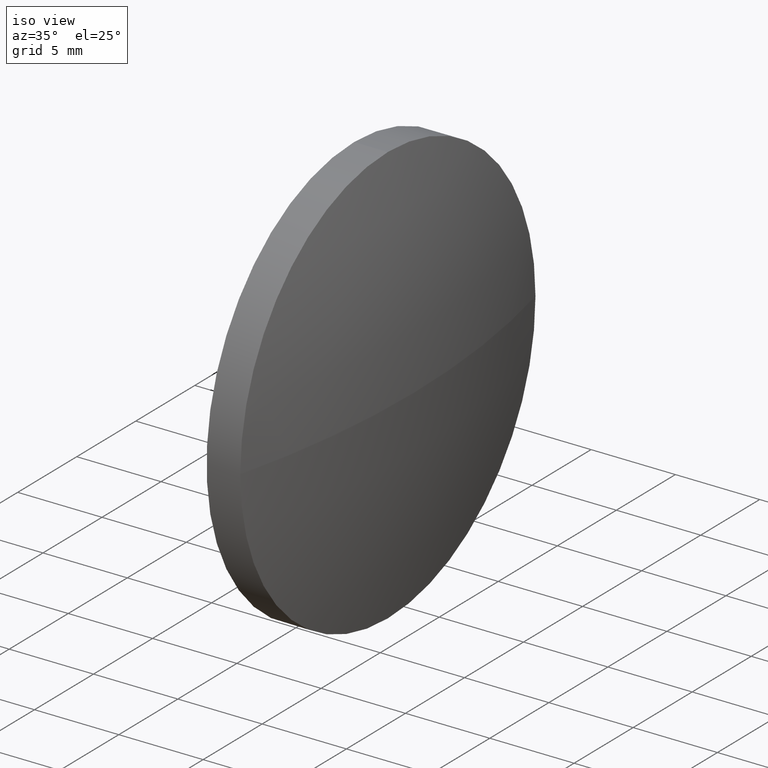
[diagram: clean part render]
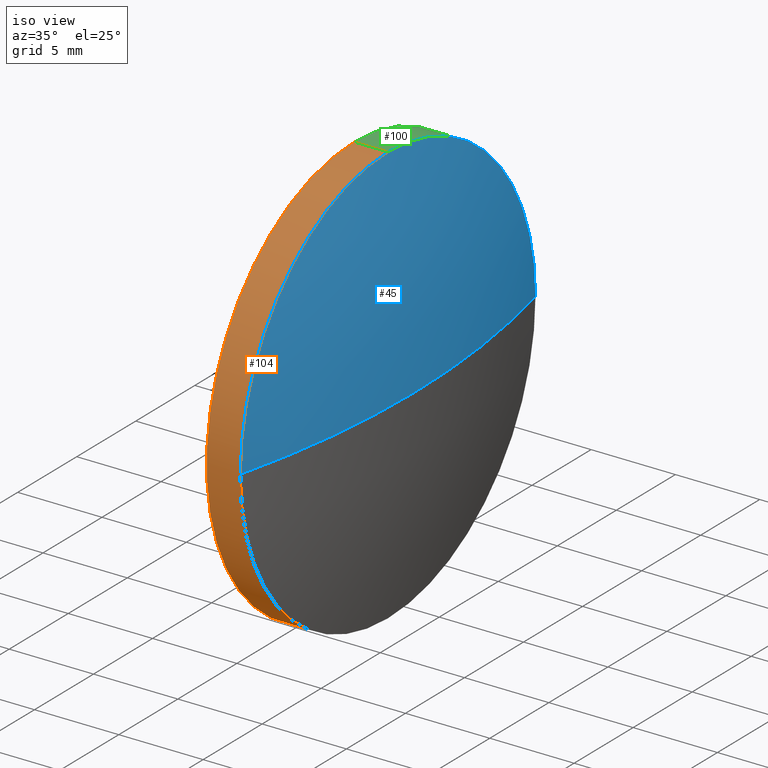
[diagram: same view with three faces highlighted in distinct colors, each labeled with its STEP entity id]
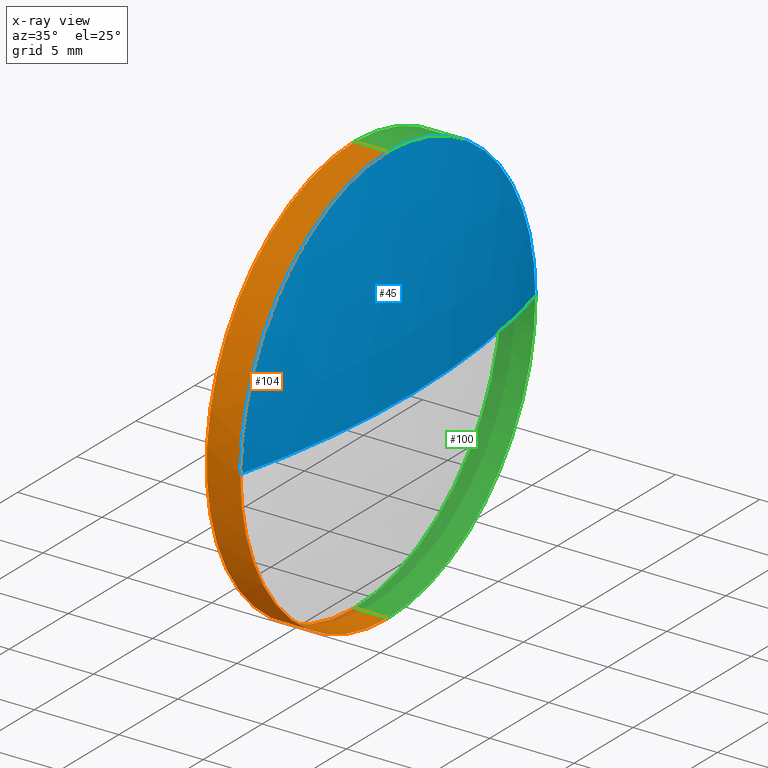
[diagram: x-ray of the same camera — body ghosted, the three highlighted faces saturated]
A machine part, iso view with three faces highlighted in distinct colors.
The next image is the same camera in x-ray (body ghosted, the three faces saturated) — at least one of them is partly hidden behind the body in this view.
Their STEP definitions:

[orange] entity #104 — the highlighted cylindrical surface (partial cylindrical patch) has radius 12.5 mm, axis along (-1, -0, -0).
#5 = VERTEX_POINT ( 'NONE', #183 ) ;
#6 = VECTOR ( 'NONE', #181, 1000.000000000000000 ) ;
#11 = CARTESIAN_POINT ( 'NONE',  ( 56.69840306798278100, 32.51047268998112800, -12.50000000000000400 ) ) ;
#21 = EDGE_LOOP ( 'NONE', ( #177, #22, #27, #57, #142 ) ) ;
#22 = ORIENTED_EDGE ( 'NONE', *, *, #59, .T. ) ;
#24 = EDGE_CURVE ( 'NONE', #37, #180, #117, .T. ) ;
#27 = ORIENTED_EDGE ( 'NONE', *, *, #145, .T. ) ;
#30 = CARTESIAN_POINT ( 'NONE',  ( 56.69840306798278100, 32.51047268998112800, 12.50000000000000400 ) ) ;
#31 = DIRECTION ( 'NONE',  ( 0.0000000000000000000, 0.0000000000000000000, 1.000000000000000000 ) ) ;
#37 = VERTEX_POINT ( 'NONE', #11 ) ;
#38 = CARTESIAN_POINT ( 'NONE',  ( 56.69840306798278100, 32.51047268998112800, 0.0000000000000000000 ) ) ;
#47 = FACE_OUTER_BOUND ( 'NONE', #21, .T. ) ;
#56 = DIRECTION ( 'NONE',  ( -1.000000000000000000, -0.0000000000000000000, -0.0000000000000000000 ) ) ;
#57 = ORIENTED_EDGE ( 'NONE', *, *, #122, .T. ) ;
#59 = EDGE_CURVE ( 'NONE', #5, #61, #108, .T. ) ;
#61 = VERTEX_POINT ( 'NONE', #127 ) ;
#66 = DIRECTION ( 'NONE',  ( 0.0000000000000000000, 0.0000000000000000000, 1.000000000000000000 ) ) ;
#68 = CIRCLE ( 'NONE', #103, 12.50000000000000400 ) ;
#69 = CARTESIAN_POINT ( 'NONE',  ( 58.69840306798278100, 32.51047268998112800, 12.50000000000000400 ) ) ;
#73 = DIRECTION ( 'NONE',  ( -1.000000000000000000, -0.0000000000000000000, -0.0000000000000000000 ) ) ;
#77 = CARTESIAN_POINT ( 'NONE',  ( 54.33278716522182300, 32.51047268998112800, -12.50000000000000400 ) ) ;
#86 = DIRECTION ( 'NONE',  ( 0.0000000000000000000, 0.0000000000000000000, 1.000000000000000000 ) ) ;
#88 = EDGE_CURVE ( 'NONE', #5, #37, #161, .T. ) ;
#90 = AXIS2_PLACEMENT_3D ( 'NONE', #173, #97, #31 ) ;
#92 = CARTESIAN_POINT ( 'NONE',  ( 58.69840306798278100, 32.51047268998112800, 0.0000000000000000000 ) ) ;
#93 = DIRECTION ( 'NONE',  ( -1.000000000000000000, -0.0000000000000000000, -0.0000000000000000000 ) ) ;
#95 = CARTESIAN_POINT ( 'NONE',  ( 54.33278716522182300, 32.51047268998112800, 12.50000000000000400 ) ) ;
#97 = DIRECTION ( 'NONE',  ( -1.000000000000000000, -0.0000000000000000000, -0.0000000000000000000 ) ) ;
#103 = AXIS2_PLACEMENT_3D ( 'NONE', #185, #56, #86 ) ;
#104 = ADVANCED_FACE ( 'NONE', ( #47 ), #141, .T. ) ;
#108 = CIRCLE ( 'NONE', #138, 12.50000000000000400 ) ;
#111 = DIRECTION ( 'NONE',  ( 0.0000000000000000000, 0.0000000000000000000, 1.000000000000000000 ) ) ;
#112 = VECTOR ( 'NONE', #73, 1000.000000000000000 ) ;
#117 = CIRCLE ( 'NONE', #172, 12.50000000000000400 ) ;
#120 = LINE ( 'NONE', #95, #112 ) ;
#122 = EDGE_CURVE ( 'NONE', #162, #180, #120, .T. ) ;
#127 = CARTESIAN_POINT ( 'NONE',  ( 58.69840306798278100, 20.01047268998112800, -1.530808498934191100E-015 ) ) ;
#138 = AXIS2_PLACEMENT_3D ( 'NONE', #92, #93, #111 ) ;
#141 = CYLINDRICAL_SURFACE ( 'NONE', #90, 12.50000000000000400 ) ;
#142 = ORIENTED_EDGE ( 'NONE', *, *, #24, .F. ) ;
#145 = EDGE_CURVE ( 'NONE', #61, #162, #68, .T. ) ;
#161 = LINE ( 'NONE', #77, #6 ) ;
#162 = VERTEX_POINT ( 'NONE', #69 ) ;
#172 = AXIS2_PLACEMENT_3D ( 'NONE', #38, #179, #66 ) ;
#173 = CARTESIAN_POINT ( 'NONE',  ( 54.33278716522182300, 32.51047268998112800, 0.0000000000000000000 ) ) ;
#177 = ORIENTED_EDGE ( 'NONE', *, *, #88, .F. ) ;
#179 = DIRECTION ( 'NONE',  ( -1.000000000000000000, -0.0000000000000000000, -0.0000000000000000000 ) ) ;
#180 = VERTEX_POINT ( 'NONE', #30 ) ;
#181 = DIRECTION ( 'NONE',  ( -1.000000000000000000, -0.0000000000000000000, -0.0000000000000000000 ) ) ;
#183 = CARTESIAN_POINT ( 'NONE',  ( 58.69840306798278100, 32.51047268998112800, -12.50000000000000400 ) ) ;
#185 = CARTESIAN_POINT ( 'NONE',  ( 58.69840306798278100, 32.51047268998112800, 0.0000000000000000000 ) ) ;

[blue] entity #45 — the highlighted spherical surface has radius 51.5005 mm.
#10 = DIRECTION ( 'NONE',  ( -0.0000000000000000000, 0.0000000000000000000, -1.000000000000000000 ) ) ;
#17 = CARTESIAN_POINT ( 'NONE',  ( 58.69840306798278100, 45.01047268998112100, 0.0000000000000000000 ) ) ;
#25 = DIRECTION ( 'NONE',  ( 0.0000000000000000000, 0.0000000000000000000, 1.000000000000000000 ) ) ;
#26 = DIRECTION ( 'NONE',  ( 0.0000000000000000000, 1.224646799147353200E-016, -1.000000000000000000 ) ) ;
#44 = EDGE_CURVE ( 'NONE', #162, #184, #60, .T. ) ;
#45 = ADVANCED_FACE ( 'NONE', ( #106 ), #139, .T. ) ;
#56 = DIRECTION ( 'NONE',  ( -1.000000000000000000, -0.0000000000000000000, -0.0000000000000000000 ) ) ;
#58 = EDGE_CURVE ( 'NONE', #131, #184, #64, .T. ) ;
#60 = CIRCLE ( 'NONE', #109, 12.50000000000000400 ) ;
#61 = VERTEX_POINT ( 'NONE', #127 ) ;
#63 = DIRECTION ( 'NONE',  ( 1.000000000000000000, 0.0000000000000000000, 0.0000000000000000000 ) ) ;
#64 = CIRCLE ( 'NONE', #132, 51.50051948051952900 ) ;
#65 = CARTESIAN_POINT ( 'NONE',  ( 58.69840306798278100, 32.51047268998112800, 0.0000000000000000000 ) ) ;
#67 = CARTESIAN_POINT ( 'NONE',  ( 8.737883587463251400, 32.51047268998112800, 0.0000000000000000000 ) ) ;
#68 = CIRCLE ( 'NONE', #103, 12.50000000000000400 ) ;
#69 = CARTESIAN_POINT ( 'NONE',  ( 58.69840306798278100, 32.51047268998112800, 12.50000000000000400 ) ) ;
#76 = EDGE_CURVE ( 'NONE', #131, #61, #148, .T. ) ;
#78 = DIRECTION ( 'NONE',  ( -1.000000000000000000, -0.0000000000000000000, -0.0000000000000000000 ) ) ;
#79 = CARTESIAN_POINT ( 'NONE',  ( 8.737883587463251400, 32.51047268998112800, 0.0000000000000000000 ) ) ;
#86 = DIRECTION ( 'NONE',  ( 0.0000000000000000000, 0.0000000000000000000, 1.000000000000000000 ) ) ;
#102 = ORIENTED_EDGE ( 'NONE', *, *, #76, .F. ) ;
#103 = AXIS2_PLACEMENT_3D ( 'NONE', #185, #56, #86 ) ;
#106 = FACE_OUTER_BOUND ( 'NONE', #126, .T. ) ;
#109 = AXIS2_PLACEMENT_3D ( 'NONE', #65, #78, #25 ) ;
#119 = AXIS2_PLACEMENT_3D ( 'NONE', #79, #10, #137 ) ;
#125 = DIRECTION ( 'NONE',  ( 0.0000000000000000000, 1.000000000000000000, 1.224646799147353500E-016 ) ) ;
#126 = EDGE_LOOP ( 'NONE', ( #102, #164, #168, #133 ) ) ;
#127 = CARTESIAN_POINT ( 'NONE',  ( 58.69840306798278100, 20.01047268998112800, -1.530808498934191100E-015 ) ) ;
#130 = CARTESIAN_POINT ( 'NONE',  ( 60.23840306798278000, 32.51047268998112800, 0.0000000000000000000 ) ) ;
#131 = VERTEX_POINT ( 'NONE', #130 ) ;
#132 = AXIS2_PLACEMENT_3D ( 'NONE', #167, #136, #63 ) ;
#133 = ORIENTED_EDGE ( 'NONE', *, *, #145, .F. ) ;
#136 = DIRECTION ( 'NONE',  ( -0.0000000000000000000, 0.0000000000000000000, 1.000000000000000000 ) ) ;
#137 = DIRECTION ( 'NONE',  ( 0.0000000000000000000, 1.000000000000000000, 0.0000000000000000000 ) ) ;
#139 = SPHERICAL_SURFACE ( 'NONE', #119, 51.50051948051952900 ) ;
#145 = EDGE_CURVE ( 'NONE', #61, #162, #68, .T. ) ;
#148 = CIRCLE ( 'NONE', #166, 51.50051948051952200 ) ;
#162 = VERTEX_POINT ( 'NONE', #69 ) ;
#164 = ORIENTED_EDGE ( 'NONE', *, *, #58, .T. ) ;
#166 = AXIS2_PLACEMENT_3D ( 'NONE', #67, #26, #125 ) ;
#167 = CARTESIAN_POINT ( 'NONE',  ( 8.737883587463251400, 32.51047268998112800, 0.0000000000000000000 ) ) ;
#168 = ORIENTED_EDGE ( 'NONE', *, *, #44, .F. ) ;
#184 = VERTEX_POINT ( 'NONE', #17 ) ;
#185 = CARTESIAN_POINT ( 'NONE',  ( 58.69840306798278100, 32.51047268998112800, 0.0000000000000000000 ) ) ;

[green] entity #100 — the highlighted cylindrical surface (partial cylindrical patch) has radius 12.5 mm, axis along (-1, -0, -0).
#4 = CIRCLE ( 'NONE', #157, 12.50000000000000400 ) ;
#5 = VERTEX_POINT ( 'NONE', #183 ) ;
#6 = VECTOR ( 'NONE', #181, 1000.000000000000000 ) ;
#7 = FACE_OUTER_BOUND ( 'NONE', #34, .T. ) ;
#11 = CARTESIAN_POINT ( 'NONE',  ( 56.69840306798278100, 32.51047268998112800, -12.50000000000000400 ) ) ;
#15 = DIRECTION ( 'NONE',  ( -1.000000000000000000, -0.0000000000000000000, -0.0000000000000000000 ) ) ;
#17 = CARTESIAN_POINT ( 'NONE',  ( 58.69840306798278100, 45.01047268998112100, 0.0000000000000000000 ) ) ;
#23 = ORIENTED_EDGE ( 'NONE', *, *, #44, .T. ) ;
#25 = DIRECTION ( 'NONE',  ( 0.0000000000000000000, 0.0000000000000000000, 1.000000000000000000 ) ) ;
#28 = CARTESIAN_POINT ( 'NONE',  ( 58.69840306798278100, 32.51047268998112800, 0.0000000000000000000 ) ) ;
#30 = CARTESIAN_POINT ( 'NONE',  ( 56.69840306798278100, 32.51047268998112800, 12.50000000000000400 ) ) ;
#34 = EDGE_LOOP ( 'NONE', ( #113, #135, #87, #48, #23 ) ) ;
#35 = EDGE_CURVE ( 'NONE', #184, #5, #158, .T. ) ;
#37 = VERTEX_POINT ( 'NONE', #11 ) ;
#41 = DIRECTION ( 'NONE',  ( -1.000000000000000000, -0.0000000000000000000, -0.0000000000000000000 ) ) ;
#44 = EDGE_CURVE ( 'NONE', #162, #184, #60, .T. ) ;
#48 = ORIENTED_EDGE ( 'NONE', *, *, #122, .F. ) ;
#52 = CARTESIAN_POINT ( 'NONE',  ( 56.69840306798278100, 32.51047268998112800, 0.0000000000000000000 ) ) ;
#60 = CIRCLE ( 'NONE', #109, 12.50000000000000400 ) ;
#65 = CARTESIAN_POINT ( 'NONE',  ( 58.69840306798278100, 32.51047268998112800, 0.0000000000000000000 ) ) ;
#69 = CARTESIAN_POINT ( 'NONE',  ( 58.69840306798278100, 32.51047268998112800, 12.50000000000000400 ) ) ;
#72 = EDGE_CURVE ( 'NONE', #180, #37, #4, .T. ) ;
#73 = DIRECTION ( 'NONE',  ( -1.000000000000000000, -0.0000000000000000000, -0.0000000000000000000 ) ) ;
#75 = CYLINDRICAL_SURFACE ( 'NONE', #83, 12.50000000000000400 ) ;
#77 = CARTESIAN_POINT ( 'NONE',  ( 54.33278716522182300, 32.51047268998112800, -12.50000000000000400 ) ) ;
#78 = DIRECTION ( 'NONE',  ( -1.000000000000000000, -0.0000000000000000000, -0.0000000000000000000 ) ) ;
#83 = AXIS2_PLACEMENT_3D ( 'NONE', #140, #41, #169 ) ;
#87 = ORIENTED_EDGE ( 'NONE', *, *, #72, .F. ) ;
#88 = EDGE_CURVE ( 'NONE', #5, #37, #161, .T. ) ;
#94 = DIRECTION ( 'NONE',  ( -1.000000000000000000, -0.0000000000000000000, -0.0000000000000000000 ) ) ;
#95 = CARTESIAN_POINT ( 'NONE',  ( 54.33278716522182300, 32.51047268998112800, 12.50000000000000400 ) ) ;
#100 = ADVANCED_FACE ( 'NONE', ( #7 ), #75, .T. ) ;
#109 = AXIS2_PLACEMENT_3D ( 'NONE', #65, #78, #25 ) ;
#110 = DIRECTION ( 'NONE',  ( 0.0000000000000000000, 0.0000000000000000000, 1.000000000000000000 ) ) ;
#112 = VECTOR ( 'NONE', #73, 1000.000000000000000 ) ;
#113 = ORIENTED_EDGE ( 'NONE', *, *, #35, .T. ) ;
#120 = LINE ( 'NONE', #95, #112 ) ;
#122 = EDGE_CURVE ( 'NONE', #162, #180, #120, .T. ) ;
#135 = ORIENTED_EDGE ( 'NONE', *, *, #88, .T. ) ;
#140 = CARTESIAN_POINT ( 'NONE',  ( 54.33278716522182300, 32.51047268998112800, 0.0000000000000000000 ) ) ;
#149 = AXIS2_PLACEMENT_3D ( 'NONE', #28, #15, #182 ) ;
#157 = AXIS2_PLACEMENT_3D ( 'NONE', #52, #94, #110 ) ;
#158 = CIRCLE ( 'NONE', #149, 12.50000000000000400 ) ;
#161 = LINE ( 'NONE', #77, #6 ) ;
#162 = VERTEX_POINT ( 'NONE', #69 ) ;
#169 = DIRECTION ( 'NONE',  ( 0.0000000000000000000, 0.0000000000000000000, 1.000000000000000000 ) ) ;
#180 = VERTEX_POINT ( 'NONE', #30 ) ;
#181 = DIRECTION ( 'NONE',  ( -1.000000000000000000, -0.0000000000000000000, -0.0000000000000000000 ) ) ;
#182 = DIRECTION ( 'NONE',  ( 0.0000000000000000000, 0.0000000000000000000, 1.000000000000000000 ) ) ;
#183 = CARTESIAN_POINT ( 'NONE',  ( 58.69840306798278100, 32.51047268998112800, -12.50000000000000400 ) ) ;
#184 = VERTEX_POINT ( 'NONE', #17 ) ;